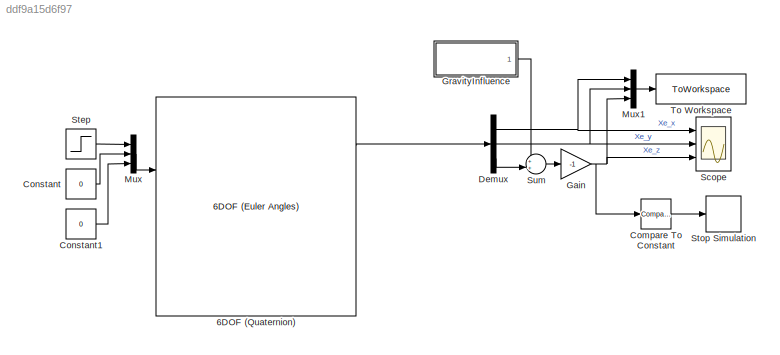
MODEL slx_ddf9a15d6f97
KIND model
CONFIG AbsTol = 1e-6
CONFIG EnableMultiTasking = off
CONFIG FixedStep = auto
CONFIG MaxStep = auto
CONFIG MinStep = auto
CONFIG PreLoadFcn = airframe_init
CONFIG RelTol = 1e-3
CONFIG SampleTimeConstraint = Unconstrained
CONFIG SolverName = ode45
CONFIG StartTime = 0.0
CONFIG StopFcn = % airframe_plot
CONFIG StopTime = SimTime
BLOCK [Reference] 6DOF (Quaternion)  REF=shared6dof/6DOF (Euler Angles)
  Ports = [2, 8]
  SourceBlock = shared6dof/6DOF (Euler Angles)
  SourceProductBaseCode = AE,PW,DR,MT,VE
  SourceType = 6DOF EoM (Body Axis)
BLOCK [Reference] Compare To Constant  REF=simulink/Logic and Bit
Operations/Compare
To Constant
  Ports = [1, 1]
  SourceBlock = simulink/Logic and Bit\nOperations/Compare\nTo Constant
  SourceProductBaseCode = SL
  SourceType = Compare To Constant
BLOCK [Constant] Constant
  Value = 0
BLOCK [Constant] Constant1
  Value = 0
BLOCK [Demux] Demux
  Outputs = 3
  Ports = [1, 3]
BLOCK [Gain] Gain
  Gain = -1
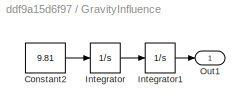
BLOCK [SubSystem] GravityInfluence
  Ports = [0, 1]
  RequestExecContextInheritance = off
BLOCK [Constant] GravityInfluence/Constant2
  Value = 9.81
BLOCK [Integrator] GravityInfluence/Integrator
  Ports = [1, 1]
BLOCK [Integrator] GravityInfluence/Integrator1
  Ports = [1, 1]
BLOCK [Outport] GravityInfluence/Out1
BLOCK [Mux] Mux
  DisplayOption = bar
  Inputs = 3
  Ports = [3, 1]
BLOCK [Mux] Mux1
  DisplayOption = bar
  Inputs = 3
  Ports = [3, 1]
BLOCK [Scope] Scope
  Floating = off
  NumInputPorts = 3
  Ports = [3]
  ScopeSpecificationString = Simulink.scopes.TimeScopeBlockCfg('CurrentConfiguration', extmgr.ConfigurationSet(extmgr.Configuration('Core','General UI',true),extmgr.Configuration('Core','Source UI',true),extmgr.Configuration('Sources','WiredSimulink',true),extmgr.Configuration('Visuals','Time Domain',true,'SerializedDisplays',{struct('MinYLimReal','-219.672','MaxYLimReal','1977.04796','YLabelReal','','MinYLimMag',' 0.00000','...<+2741ch>
BLOCK [Step] Step
  After = 0
  Before = thrust_magnitude
  SampleTime = 0
  Time = boosting_time
BLOCK [Stop] Stop Simulation
BLOCK [Sum] Sum
  Inputs = ++|
  Ports = [2, 1]
BLOCK [ToWorkspace] To Workspace
  MaxDataPoints = inf
  Ports = [1]
  SampleTime = -1
  SaveFormat = Structure With Time
  VariableName = pose_missile
LINE 6DOF (Quaternion):2 -> Demux:1
LINE Compare To Constant:1 -> Stop Simulation:1
LINE Constant1:1 -> Mux:3
LINE Constant:1 -> Mux:2
NET Demux:1 -> Mux1:1, Scope:1
NET Demux:2 -> Mux1:2, Scope:2
LINE Demux:3 -> Sum:2
NET Gain:1 -> Compare To Constant:1, Mux1:3, Scope:3
LINE GravityInfluence/Constant2:1 -> GravityInfluence/Integrator:1
LINE GravityInfluence/Integrator1:1 -> GravityInfluence/Out1:1
LINE GravityInfluence/Integrator:1 -> GravityInfluence/Integrator1:1
LINE GravityInfluence:1 -> Sum:1
LINE Mux1:1 -> To Workspace:1
LINE Mux:1 -> 6DOF (Quaternion):1
LINE Step:1 -> Mux:1
LINE Sum:1 -> Gain:1
note: NET lines group one-source signal fan-out (src -> all destinations, sorted); 1:1 wires keep LINE
